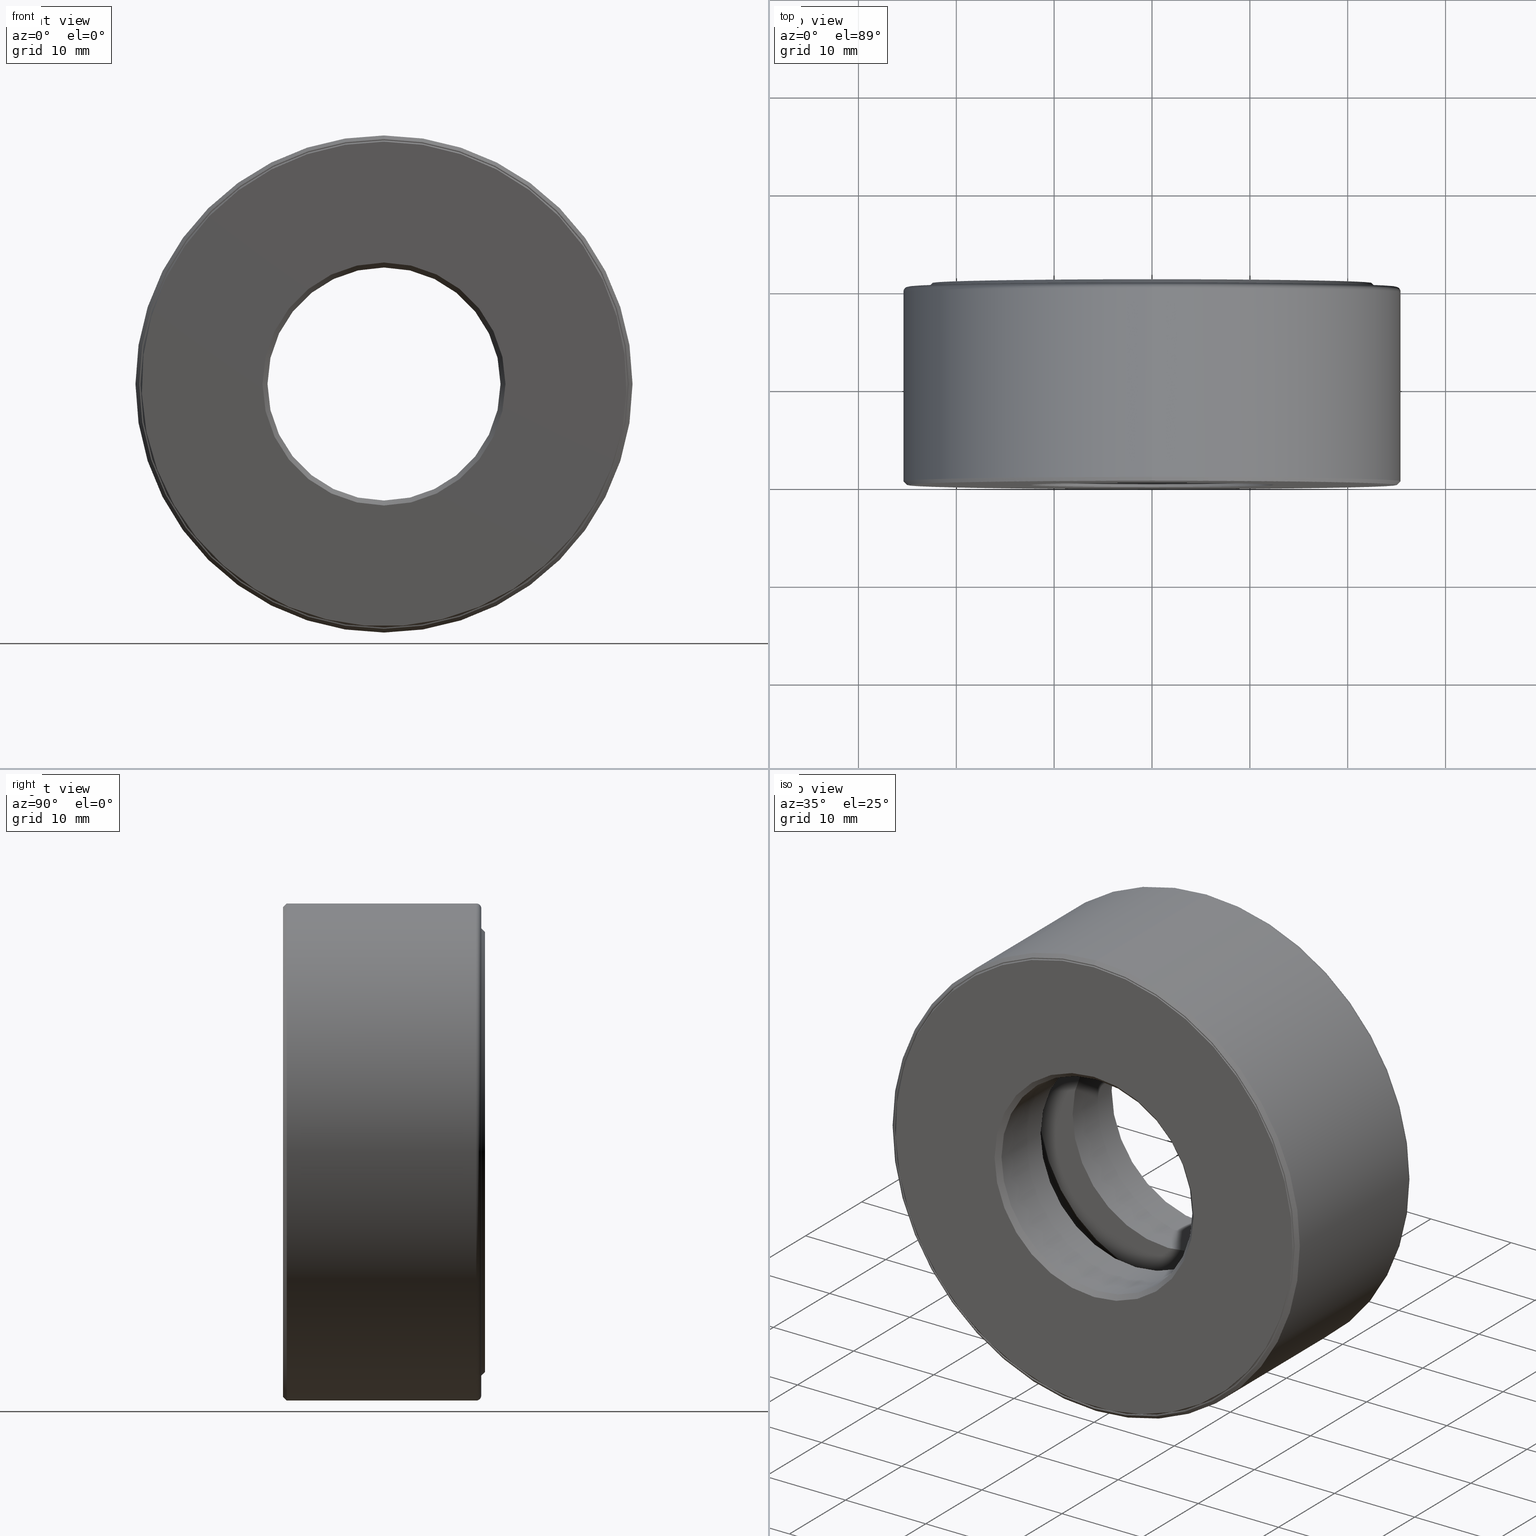
[diagram: canonical four-view strip — front | top / right | iso, engineering-drawing reading convention]
A machine part, canonical four-view strip (front | top / right | iso — engineering-drawing reading convention). The complete STEP part file that produces these views, byte-faithful:
ISO-10303-21;
HEADER;
FILE_DESCRIPTION (( 'STEP AP203' ),
    '1' );
FILE_NAME ('T-100-5.step',
    '2016-06-29T18:27:13',
    ( '' ),
    ( '' ),
    'SwSTEP 2.0',
    'SolidWorks 2016',
    '' );
FILE_SCHEMA (( 'CONFIG_CONTROL_DESIGN' ));
ENDSEC;

DATA;
#1 = DIRECTION ( 'NONE',  ( -0.0000000000000000000, 1.000000000000000000, -0.0000000000000000000 ) ) ;
#2 = FACE_BOUND ( 'NONE', #346, .T. ) ;
#3 = EDGE_LOOP ( 'NONE', ( #520 ) ) ;
#4 = CIRCLE ( 'NONE', #7, 0.9799999999999999800 ) ;
#5 = AXIS2_PLACEMENT_3D ( 'NONE', #258, #578, #65 ) ;
#6 = EDGE_CURVE ( 'NONE', #521, #521, #57, .T. ) ;
#7 = AXIS2_PLACEMENT_3D ( 'NONE', #463, #42, #561 ) ;
#8 = VERTEX_POINT ( 'NONE', #369 ) ;
#9 = SPHERICAL_SURFACE ( 'NONE', #73, 0.1874999999999999700 ) ;
#10 = ADVANCED_FACE ( 'NONE', ( #2, #331 ), #525, .F. ) ;
#11 = ADVANCED_FACE ( 'NONE', ( #195, #400 ), #96, .F. ) ;
#12 = PLANE ( 'NONE',  #468 ) ;
#13 = EDGE_LOOP ( 'NONE', ( #175 ) ) ;
#14 = LENGTH_MEASURE_WITH_UNIT ( LENGTH_MEASURE( 0.02539999999999999900 ), #507 );
#15 = CARTESIAN_POINT ( 'NONE',  ( 0.0000000000000000000, 0.0000000000000000000, 0.0000000000000000000 ) ) ;
#16 = PLANE ( 'NONE',  #5 ) ;
#17 = ORIENTED_EDGE ( 'NONE', *, *, #159, .T. ) ;
#18 = COORDINATED_UNIVERSAL_TIME_OFFSET ( 5, 0, .BEHIND. ) ;
#19 = ORIENTED_EDGE ( 'NONE', *, *, #128, .T. ) ;
#20 = CIRCLE ( 'NONE', #245, 0.9799999999999999800 ) ;
#21 = DIRECTION ( 'NONE',  ( -0.0000000000000000000, 1.000000000000000000, -0.0000000000000000000 ) ) ;
#22 = ADVANCED_FACE ( 'NONE', ( #448, #260 ), #203, .F. ) ;
#23 = EDGE_LOOP ( 'NONE', ( #423 ) ) ;
#24 = DIRECTION ( 'NONE',  ( 0.0000000000000000000, 0.0000000000000000000, 1.000000000000000000 ) ) ;
#25 = ADVANCED_FACE ( 'NONE', ( #78, #547 ), #429, .T. ) ;
#26 = EDGE_CURVE ( 'NONE', #269, #269, #246, .T. ) ;
#27 = CARTESIAN_POINT ( 'NONE',  ( 0.0000000000000000000, 0.0000000000000000000, 0.0000000000000000000 ) ) ;
#28 = DIRECTION ( 'NONE',  ( -0.0000000000000000000, 1.000000000000000000, -0.0000000000000000000 ) ) ;
#29 = CARTESIAN_POINT ( 'NONE',  ( 2.735575628983595100E-015, 0.4062500000000000000, 0.7834999999999999700 ) ) ;
#30 = CARTESIAN_POINT ( 'NONE',  ( 0.0000000000000000000, 0.8125000000000000000, 0.8849999999999996800 ) ) ;
#31 = ORIENTED_EDGE ( 'NONE', *, *, #453, .F. ) ;
#32 = VERTEX_POINT ( 'NONE', #267 ) ;
#33 = AXIS2_PLACEMENT_3D ( 'NONE', #29, #446, #413 ) ;
#34 = DIRECTION ( 'NONE',  ( -0.0000000000000000000, 1.000000000000000000, -0.0000000000000000000 ) ) ;
#35 = ORIENTED_EDGE ( 'NONE', *, *, #37, .T. ) ;
#36 = CIRCLE ( 'NONE', #100, 0.4687500000000001100 ) ;
#37 = EDGE_CURVE ( 'NONE', #32, #32, #476, .T. ) ;
#38 = CARTESIAN_POINT ( 'NONE',  ( 0.0000000000000000000, 0.7245000000000001400, 0.9729999999999999800 ) ) ;
#39 = DIRECTION ( 'NONE',  ( 1.000000000000000000, 0.0000000000000000000, 0.0000000000000000000 ) ) ;
#40 = EDGE_LOOP ( 'NONE', ( #353 ) ) ;
#41 = AXIS2_PLACEMENT_3D ( 'NONE', #71, #546, #229 ) ;
#42 = DIRECTION ( 'NONE',  ( -0.0000000000000000000, 1.000000000000000000, -0.0000000000000000000 ) ) ;
#43 = DIRECTION ( 'NONE',  ( 1.000000000000000000, 0.0000000000000000000, -1.047444401652940000E-014 ) ) ;
#44 = EDGE_LOOP ( 'NONE', ( #522 ) ) ;
#45 = ORGANIZATION ( 'UNSPECIFIED', 'UNSPECIFIED', '' ) ;
#46 = ORIENTED_EDGE ( 'NONE', *, *, #94, .T. ) ;
#47 = FACE_OUTER_BOUND ( 'NONE', #372, .T. ) ;
#48 = DIRECTION ( 'NONE',  ( -0.0000000000000000000, 1.000000000000000000, -0.0000000000000000000 ) ) ;
#49 = AXIS2_PLACEMENT_3D ( 'NONE', #418, #455, #141 ) ;
#50 = CARTESIAN_POINT ( 'NONE',  ( 0.0000000000000000000, 0.01499999999999997700, 0.0000000000000000000 ) ) ;
#51 = ADVANCED_FACE ( 'NONE', ( #598, #234 ), #12, .F. ) ;
#52 = AXIS2_PLACEMENT_3D ( 'NONE', #152, #109, #475 ) ;
#53 = ORIENTED_EDGE ( 'NONE', *, *, #238, .F. ) ;
#54 = FACE_OUTER_BOUND ( 'NONE', #591, .T. ) ;
#55 = CARTESIAN_POINT ( 'NONE',  ( 0.0000000000000000000, 0.0000000000000000000, 0.0000000000000000000 ) ) ;
#56 = EDGE_CURVE ( 'NONE', #361, #361, #351, .T. ) ;
#57 = CIRCLE ( 'NONE', #103, 0.9999999999999998900 ) ;
#58 = VERTEX_POINT ( 'NONE', #177 ) ;
#59 = CLOSED_SHELL ( 'NONE', ( #483 ) ) ;
#60 = EDGE_CURVE ( 'NONE', #196, #196, #568, .T. ) ;
#61 = FACE_OUTER_BOUND ( 'NONE', #183, .T. ) ;
#62 = PRODUCT_RELATED_PRODUCT_CATEGORY ( 'detail', '', ( #265 ) ) ;
#63 = EDGE_CURVE ( 'NONE', #424, #424, #116, .T. ) ;
#64 = ADVANCED_FACE ( 'NONE', ( #88, #370 ), #16, .F. ) ;
#65 = DIRECTION ( 'NONE',  ( 0.0000000000000000000, -0.0000000000000000000, -1.000000000000000000 ) ) ;
#66 = PERSON_AND_ORGANIZATION ( #307, #45 ) ;
#67 = ADVANCED_FACE ( 'NONE', ( #324, #217 ), #426, .F. ) ;
#68 = CIRCLE ( 'NONE', #239, 1.000000000000000000 ) ;
#69 = DIRECTION ( 'NONE',  ( -0.0000000000000000000, 1.000000000000000000, -0.0000000000000000000 ) ) ;
#70 = AXIS2_PLACEMENT_3D ( 'NONE', #275, #28, #132 ) ;
#71 = CARTESIAN_POINT ( 'NONE',  ( 0.0000000000000000000, -6.616194359655631800E-017, 0.0000000000000000000 ) ) ;
#72 = CARTESIAN_POINT ( 'NONE',  ( 0.0000000000000000000, 0.7974999999999998800, 0.9200000000000000400 ) ) ;
#73 = AXIS2_PLACEMENT_3D ( 'NONE', #312, #77, #506 ) ;
#74 = PLANE ( 'NONE',  #349 ) ;
#75 =( CONVERSION_BASED_UNIT ( 'INCH', #14 ) LENGTH_UNIT ( ) NAMED_UNIT ( #403 ) );
#76 = AXIS2_PLACEMENT_3D ( 'NONE', #465, #1, #422 ) ;
#77 = DIRECTION ( 'NONE',  ( 6.982962677686265900E-015, -0.0000000000000000000, 1.000000000000000000 ) ) ;
#78 = FACE_OUTER_BOUND ( 'NONE', #92, .T. ) ;
#79 = PERSON_AND_ORGANIZATION ( #307, #45 ) ;
#80 = AXIS2_PLACEMENT_3D ( 'NONE', #355, #398, #495 ) ;
#81 = ORIENTED_EDGE ( 'NONE', *, *, #442, .F. ) ;
#82 = MECHANICAL_CONTEXT ( 'NONE', #454, 'mechanical' ) ;
#83 = FACE_OUTER_BOUND ( 'NONE', #211, .T. ) ;
#84 = DIRECTION ( 'NONE',  ( -0.0000000000000000000, 1.000000000000000000, -0.0000000000000000000 ) ) ;
#85 = DIRECTION ( 'NONE',  ( 0.0000000000000000000, 0.0000000000000000000, 1.000000000000000000 ) ) ;
#86 = CARTESIAN_POINT ( 'NONE',  ( 0.0000000000000000000, 0.2937500000000000100, 0.4687500000000001100 ) ) ;
#87 = PERSON_AND_ORGANIZATION_ROLE ( 'classification_officer' ) ;
#88 = FACE_BOUND ( 'NONE', #535, .T. ) ;
#89 = LOCAL_TIME ( 14, 27, 13.00000000000000000, #457 ) ;
#90 = PRODUCT_DEFINITION ( 'UNKNOWN', '', #221, #559 ) ;
#91 = DIRECTION ( 'NONE',  ( 0.0000000000000000000, 0.0000000000000000000, 1.000000000000000000 ) ) ;
#92 = EDGE_LOOP ( 'NONE', ( #197 ) ) ;
#93 = FACE_OUTER_BOUND ( 'NONE', #491, .T. ) ;
#94 = EDGE_CURVE ( 'NONE', #381, #381, #36, .T. ) ;
#95 = DIRECTION ( 'NONE',  ( -0.0000000000000000000, 1.000000000000000000, -0.0000000000000000000 ) ) ;
#96 = CYLINDRICAL_SURFACE ( 'NONE', #282, 0.4687500000000000000 ) ;
#97 = FACE_OUTER_BOUND ( 'NONE', #145, .T. ) ;
#98 = EDGE_LOOP ( 'NONE', ( #549 ) ) ;
#99 = FACE_OUTER_BOUND ( 'NONE', #539, .T. ) ;
#100 = AXIS2_PLACEMENT_3D ( 'NONE', #485, #532, #531 ) ;
#101 = DIRECTION ( 'NONE',  ( 1.047444401652940000E-014, 0.0000000000000000000, 1.000000000000000000 ) ) ;
#102 = DIRECTION ( 'NONE',  ( 0.0000000000000000000, -0.0000000000000000000, -1.000000000000000000 ) ) ;
#103 = AXIS2_PLACEMENT_3D ( 'NONE', #50, #158, #427 ) ;
#104 = CALENDAR_DATE ( 2016, 29, 6 ) ;
#105 = EDGE_LOOP ( 'NONE', ( #600 ) ) ;
#106 = FACE_BOUND ( 'NONE', #298, .T. ) ;
#107 = MANIFOLD_SOLID_BREP ( 'Revolve2[1]', #420 ) ;
#108 = ADVANCED_FACE ( 'NONE', ( #106, #99 ), #163, .F. ) ;
#109 = DIRECTION ( 'NONE',  ( -0.0000000000000000000, 1.000000000000000000, -0.0000000000000000000 ) ) ;
#110 = AXIS2_PLACEMENT_3D ( 'NONE', #367, #84, #499 ) ;
#111 = EDGE_CURVE ( 'NONE', #138, #138, #438, .T. ) ;
#112 = ORIENTED_EDGE ( 'NONE', *, *, #149, .T. ) ;
#113 = LOCAL_TIME ( 14, 27, 13.00000000000000000, #18 ) ;
#114 = EDGE_LOOP ( 'NONE', ( #589 ) ) ;
#115 = CYLINDRICAL_SURFACE ( 'NONE', #147, 0.4687500000000001100 ) ;
#116 = CIRCLE ( 'NONE', #80, 0.4687500000000001100 ) ;
#117 = APPROVAL_PERSON_ORGANIZATION ( #66, #137, #604 ) ;
#118 = EDGE_LOOP ( 'NONE', ( #262 ) ) ;
#119 = CIRCLE ( 'NONE', #49, 0.4887500000000000700 ) ;
#120 = ADVANCED_FACE ( 'NONE', ( #584, #460 ), #489, .F. ) ;
#121 = AXIS2_PLACEMENT_3D ( 'NONE', #509, #131, #358 ) ;
#122 = DIRECTION ( 'NONE',  ( -0.0000000000000000000, 1.000000000000000000, -0.0000000000000000000 ) ) ;
#123 = CARTESIAN_POINT ( 'NONE',  ( 0.0000000000000000000, 0.0000000000000000000, 0.0000000000000000000 ) ) ;
#124 = CARTESIAN_POINT ( 'NONE',  ( 0.0000000000000000000, 0.7774999999999998600, 0.0000000000000000000 ) ) ;
#125 = CARTESIAN_POINT ( 'NONE',  ( 0.0000000000000000000, 0.7774999999999998600, 0.9799999999999999800 ) ) ;
#126 = EDGE_LOOP ( 'NONE', ( #225 ) ) ;
#127 = DIRECTION ( 'NONE',  ( 0.0000000000000000000, -0.0000000000000000000, -1.000000000000000000 ) ) ;
#128 = EDGE_CURVE ( 'NONE', #449, #449, #306, .T. ) ;
#129 = ADVANCED_FACE ( 'NONE', ( #61, #140 ), #215, .F. ) ;
#130 = CIRCLE ( 'NONE', #503, 0.9729999999999999800 ) ;
#131 = DIRECTION ( 'NONE',  ( 0.0000000000000000000, -1.000000000000000000, 0.0000000000000000000 ) ) ;
#132 = DIRECTION ( 'NONE',  ( 0.0000000000000000000, 0.0000000000000000000, 1.000000000000000000 ) ) ;
#133 = APPLICATION_PROTOCOL_DEFINITION ( 'international standard', 'config_control_design', 1994, #410 ) ;
#134 = AXIS2_PLACEMENT_3D ( 'NONE', #543, #405, #356 ) ;
#135 = PLANE ( 'NONE',  #310 ) ;
#136 = DIRECTION ( 'NONE',  ( -0.0000000000000000000, 1.000000000000000000, -0.0000000000000000000 ) ) ;
#137 = APPROVAL ( #385, 'UNSPECIFIED' ) ;
#138 = VERTEX_POINT ( 'NONE', #187 ) ;
#139 = EDGE_LOOP ( 'NONE', ( #404 ) ) ;
#140 = FACE_OUTER_BOUND ( 'NONE', #390, .T. ) ;
#141 = DIRECTION ( 'NONE',  ( 0.0000000000000000000, 0.0000000000000000000, 1.000000000000000000 ) ) ;
#142 = CARTESIAN_POINT ( 'NONE',  ( -8.194164824205915600E-033, -3.148027961449053600E-017, 0.0000000000000000000 ) ) ;
#143 = DIRECTION ( 'NONE',  ( -0.0000000000000000000, 1.000000000000000000, 0.0000000000000000000 ) ) ;
#144 = APPROVAL_ROLE ( '' ) ;
#145 = EDGE_LOOP ( 'NONE', ( #19 ) ) ;
#146 = CYLINDRICAL_SURFACE ( 'NONE', #350, 0.9729999999999999800 ) ;
#147 = AXIS2_PLACEMENT_3D ( 'NONE', #181, #545, #411 ) ;
#148 = CARTESIAN_POINT ( 'NONE',  ( -8.206726886950784100E-015, 0.4062500000000000000, -0.7834999999999999700 ) ) ;
#149 = EDGE_CURVE ( 'NONE', #167, #167, #494, .T. ) ;
#150 = ORIENTED_EDGE ( 'NONE', *, *, #164, .T. ) ;
#151 = FACE_BOUND ( 'NONE', #327, .T. ) ;
#152 = CARTESIAN_POINT ( 'NONE',  ( 0.0000000000000000000, 0.5187500000000000400, 0.0000000000000000000 ) ) ;
#153 = UNCERTAINTY_MEASURE_WITH_UNIT (LENGTH_MEASURE( 1.000000000000000100E-005 ), #75, 'distance_accuracy_value', 'NONE');
#154 = ADVANCED_FACE ( 'NONE', ( #334, #480 ), #354, .F. ) ;
#155 = APPROVAL_DATE_TIME ( #391, #137 ) ;
#156 = DIRECTION ( 'NONE',  ( -0.0000000000000000000, 1.000000000000000000, 0.0000000000000000000 ) ) ;
#157 = AXIS2_PLACEMENT_3D ( 'NONE', #123, #314, #365 ) ;
#158 = DIRECTION ( 'NONE',  ( -0.0000000000000000000, 1.000000000000000000, -0.0000000000000000000 ) ) ;
#159 = EDGE_CURVE ( 'NONE', #519, #519, #592, .T. ) ;
#160 = ADVANCED_FACE ( 'NONE', ( #402, #237 ), #497, .F. ) ;
#161 = ORIENTED_EDGE ( 'NONE', *, *, #6, .T. ) ;
#162 = AXIS2_PLACEMENT_3D ( 'NONE', #554, #508, #376 ) ;
#163 = PLANE ( 'NONE',  #364 ) ;
#164 = EDGE_CURVE ( 'NONE', #534, #534, #470, .T. ) ;
#165 = CARTESIAN_POINT ( 'NONE',  ( -4.314410473864960100E-016, 0.2937499999999999000, 0.0000000000000000000 ) ) ;
#166 = ORIENTED_EDGE ( 'NONE', *, *, #128, .F. ) ;
#167 = VERTEX_POINT ( 'NONE', #552 ) ;
#168 = EDGE_LOOP ( 'NONE', ( #46 ) ) ;
#169 = FACE_OUTER_BOUND ( 'NONE', #205, .T. ) ;
#170 = ADVANCED_FACE ( 'NONE', ( #444, #186 ), #206, .T. ) ;
#171 = DIRECTION ( 'NONE',  ( 0.0000000000000000000, 0.0000000000000000000, -1.000000000000000000 ) ) ;
#172 = DIRECTION ( 'NONE',  ( -0.0000000000000000000, 1.000000000000000000, -0.0000000000000000000 ) ) ;
#173 = AXIS2_PLACEMENT_3D ( 'NONE', #450, #172, #587 ) ;
#174 = ADVANCED_FACE ( 'NONE', ( #363, #329 ), #414, .T. ) ;
#175 = ORIENTED_EDGE ( 'NONE', *, *, #368, .F. ) ;
#176 = VERTEX_POINT ( 'NONE', #223 ) ;
#177 = CARTESIAN_POINT ( 'NONE',  ( 0.0000000000000000000, 0.2937500000000000100, 0.6334999999999999500 ) ) ;
#178 = CARTESIAN_POINT ( 'NONE',  ( 0.0000000000000000000, 0.5187499999999999300, 0.6334999999999999500 ) ) ;
#179 = ADVANCED_FACE ( 'NONE', ( #373, #169 ), #74, .T. ) ;
#180 = AXIS2_PLACEMENT_3D ( 'NONE', #515, #283, #378 ) ;
#181 = CARTESIAN_POINT ( 'NONE',  ( 0.0000000000000000000, 0.0000000000000000000, 0.0000000000000000000 ) ) ;
#182 = APPROVAL_STATUS ( 'not_yet_approved' ) ;
#183 = EDGE_LOOP ( 'NONE', ( #53 ) ) ;
#184 = DIRECTION ( 'NONE',  ( -0.0000000000000000000, 1.000000000000000000, -0.0000000000000000000 ) ) ;
#185 = ORIENTED_EDGE ( 'NONE', *, *, #26, .T. ) ;
#186 = FACE_BOUND ( 'NONE', #574, .T. ) ;
#187 = CARTESIAN_POINT ( 'NONE',  ( 0.0000000000000000000, 0.02000000000000005900, 0.4687500000000000000 ) ) ;
#188 = DATE_TIME_ROLE ( 'classification_date' ) ;
#189 = AXIS2_PLACEMENT_3D ( 'NONE', #357, #122, #317 ) ;
#190 = CC_DESIGN_APPROVAL ( #137, ( #399 ) ) ;
#191 = ORIENTED_EDGE ( 'NONE', *, *, #164, .F. ) ;
#192 = DATE_TIME_ROLE ( 'creation_date' ) ;
#193 = APPROVAL_PERSON_ORGANIZATION ( #548, #255, #144 ) ;
#194 = DIRECTION ( 'NONE',  ( 0.0000000000000000000, 0.0000000000000000000, 1.000000000000000000 ) ) ;
#195 = FACE_OUTER_BOUND ( 'NONE', #435, .T. ) ;
#196 = VERTEX_POINT ( 'NONE', #271 ) ;
#197 = ORIENTED_EDGE ( 'NONE', *, *, #473, .T. ) ;
#198 = CIRCLE ( 'NONE', #70, 0.6334999999999999500 ) ;
#199 = CARTESIAN_POINT ( 'NONE',  ( 0.0000000000000000000, 0.8125000000000000000, 0.0000000000000000000 ) ) ;
#200 = MANIFOLD_SOLID_BREP ( 'Revolve3', #528 ) ;
#201 = AXIS2_PLACEMENT_3D ( 'NONE', #384, #95, #194 ) ;
#202 = CARTESIAN_POINT ( 'NONE',  ( 0.0000000000000000000, 0.7974999999999998800, 0.0000000000000000000 ) ) ;
#203 = CONICAL_SURFACE ( 'NONE', #570, 0.4687500000000001100, 0.7853981633974482800 ) ;
#204 = PERSON_AND_ORGANIZATION ( #307, #45 ) ;
#205 = EDGE_LOOP ( 'NONE', ( #214 ) ) ;
#206 = CONICAL_SURFACE ( 'NONE', #41, 0.9849999999999999900, 0.7853981633974415100 ) ;
#207 = ADVANCED_FACE ( 'NONE', ( #257, #228 ), #340, .T. ) ;
#208 = DIRECTION ( 'NONE',  ( 0.0000000000000000000, 0.0000000000000000000, 1.000000000000000000 ) ) ;
#209 = DIRECTION ( 'NONE',  ( 0.0000000000000000000, 0.0000000000000000000, 1.000000000000000000 ) ) ;
#210 = DIRECTION ( 'NONE',  ( 0.0000000000000000000, -0.0000000000000000000, -1.000000000000000000 ) ) ;
#211 = EDGE_LOOP ( 'NONE', ( #383 ) ) ;
#212 = VERTEX_POINT ( 'NONE', #447 ) ;
#213 = AXIS2_PLACEMENT_3D ( 'NONE', #148, #43, #101 ) ;
#214 = ORIENTED_EDGE ( 'NONE', *, *, #159, .F. ) ;
#215 = TOROIDAL_SURFACE ( 'NONE', #295, 0.7834999999999999700, 0.1875000000000000600 ) ;
#216 = DIRECTION ( 'NONE',  ( 0.0000000000000000000, -1.000000000000000000, 0.0000000000000000000 ) ) ;
#217 = FACE_BOUND ( 'NONE', #293, .T. ) ;
#218 = PERSON_AND_ORGANIZATION ( #307, #45 ) ;
#219 = FACE_OUTER_BOUND ( 'NONE', #40, .T. ) ;
#220 = CARTESIAN_POINT ( 'NONE',  ( 0.0000000000000000000, 0.005000000000000119800, 0.0000000000000000000 ) ) ;
#221 = PRODUCT_DEFINITION_FORMATION_WITH_SPECIFIED_SOURCE ( 'ANY', '', #265, .NOT_KNOWN. ) ;
#222 = DIRECTION ( 'NONE',  ( 0.0000000000000000000, 0.0000000000000000000, 1.000000000000000000 ) ) ;
#223 = CARTESIAN_POINT ( 'NONE',  ( 0.0000000000000000000, 0.5187500000000000400, 0.9729999999999999800 ) ) ;
#224 = DIRECTION ( 'NONE',  ( 0.0000000000000000000, 0.0000000000000000000, 1.000000000000000000 ) ) ;
#225 = ORIENTED_EDGE ( 'NONE', *, *, #60, .F. ) ;
#226 = FACE_OUTER_BOUND ( 'NONE', #13, .T. ) ;
#227 = EDGE_LOOP ( 'NONE', ( #379 ) ) ;
#228 = FACE_OUTER_BOUND ( 'NONE', #486, .T. ) ;
#229 = DIRECTION ( 'NONE',  ( 0.0000000000000000000, 0.0000000000000000000, 1.000000000000000000 ) ) ;
#230 = APPROVAL_ROLE ( '' ) ;
#231 = AXIS2_PLACEMENT_3D ( 'NONE', #15, #434, #302 ) ;
#232 = DIRECTION ( 'NONE',  ( 0.0000000000000000000, 0.0000000000000000000, 1.000000000000000000 ) ) ;
#233 = DIRECTION ( 'NONE',  ( 0.0000000000000000000, 0.0000000000000000000, 1.000000000000000000 ) ) ;
#234 = FACE_BOUND ( 'NONE', #114, .T. ) ;
#235 = DATE_AND_TIME ( #104, #338 ) ;
#236 = EDGE_LOOP ( 'NONE', ( #31 ) ) ;
#237 = FACE_BOUND ( 'NONE', #387, .T. ) ;
#238 = EDGE_CURVE ( 'NONE', #58, #58, #198, .T. ) ;
#239 = AXIS2_PLACEMENT_3D ( 'NONE', #606, #597, #417 ) ;
#240 = ORIENTED_EDGE ( 'NONE', *, *, #276, .F. ) ;
#241 = VERTEX_POINT ( 'NONE', #30 ) ;
#242 = EDGE_LOOP ( 'NONE', ( #240 ) ) ;
#243 = CARTESIAN_POINT ( 'NONE',  ( 0.0000000000000000000, 0.8125000000000000000, 0.0000000000000000000 ) ) ;
#244 = CIRCLE ( 'NONE', #76, 0.9335000000000000000 ) ;
#245 = AXIS2_PLACEMENT_3D ( 'NONE', #220, #320, #595 ) ;
#246 = CIRCLE ( 'NONE', #560, 0.9849999999999999900 ) ;
#247 = ADVANCED_FACE ( 'NONE', ( #263, #83 ), #115, .F. ) ;
#248 = CALENDAR_DATE ( 2016, 29, 6 ) ;
#249 = CARTESIAN_POINT ( 'NONE',  ( -1.574715117770886900E-031, -6.507487115823648300E-017, 0.0000000000000000000 ) ) ;
#250 = ORIENTED_EDGE ( 'NONE', *, *, #56, .F. ) ;
#251 = CIRCLE ( 'NONE', #366, 0.8849999999999996800 ) ;
#252 = CARTESIAN_POINT ( 'NONE',  ( 0.0000000000000000000, 0.7924999999999999800, 0.0000000000000000000 ) ) ;
#253 = ADVANCED_FACE ( 'NONE', ( ), #9, .T. ) ;
#254 = CC_DESIGN_DATE_AND_TIME_ASSIGNMENT ( #436, #192, ( #90 ) ) ;
#255 = APPROVAL ( #328, 'UNSPECIFIED' ) ;
#256 = ORIENTED_EDGE ( 'NONE', *, *, #238, .T. ) ;
#257 = FACE_OUTER_BOUND ( 'NONE', #236, .T. ) ;
#258 = CARTESIAN_POINT ( 'NONE',  ( 0.0000000000000000000, 0.7974999999999998800, 0.0000000000000000000 ) ) ;
#259 = DIRECTION ( 'NONE',  ( -0.0000000000000000000, 1.000000000000000000, -0.0000000000000000000 ) ) ;
#260 = FACE_BOUND ( 'NONE', #98, .T. ) ;
#261 = VERTEX_POINT ( 'NONE', #498 ) ;
#262 = ORIENTED_EDGE ( 'NONE', *, *, #538, .T. ) ;
#263 = FACE_OUTER_BOUND ( 'NONE', #466, .T. ) ;
#264 = DIRECTION ( 'NONE',  ( 0.0000000000000000000, 0.0000000000000000000, 1.000000000000000000 ) ) ;
#265 = PRODUCT ( 'T-100-5', 'T-100-5', '', ( #82 ) ) ;
#266 = EDGE_CURVE ( 'NONE', #540, #540, #68, .T. ) ;
#267 = CARTESIAN_POINT ( 'NONE',  ( 0.0000000000000000000, 0.5187500000000000400, 0.4687500000000001100 ) ) ;
#268 = ORIENTED_EDGE ( 'NONE', *, *, #111, .F. ) ;
#269 = VERTEX_POINT ( 'NONE', #277 ) ;
#270 = DIRECTION ( 'NONE',  ( -0.0000000000000000000, 1.000000000000000000, 0.0000000000000000000 ) ) ;
#271 = CARTESIAN_POINT ( 'NONE',  ( 0.0000000000000000000, -6.398779871991658700E-017, 0.9799999999999997600 ) ) ;
#272 = AXIS2_PLACEMENT_3D ( 'NONE', #416, #184, #462 ) ;
#273 = APPLICATION_PROTOCOL_DEFINITION ( 'international standard', 'config_control_design', 1994, #454 ) ;
#274 =( GEOMETRIC_REPRESENTATION_CONTEXT ( 3 ) GLOBAL_UNCERTAINTY_ASSIGNED_CONTEXT ( ( #153 ) ) GLOBAL_UNIT_ASSIGNED_CONTEXT ( ( #75, #309, #502 ) ) REPRESENTATION_CONTEXT ( 'NONE', 'WORKASPACE' ) );
#275 = CARTESIAN_POINT ( 'NONE',  ( 0.0000000000000000000, 0.2937500000000000100, 0.0000000000000000000 ) ) ;
#276 = EDGE_CURVE ( 'NONE', #511, #511, #119, .T. ) ;
#277 = CARTESIAN_POINT ( 'NONE',  ( 0.0000000000000000000, -6.616194359655631800E-017, 0.9849999999999999900 ) ) ;
#278 = ORIENTED_EDGE ( 'NONE', *, *, #149, .F. ) ;
#279 = PERSON_AND_ORGANIZATION_ROLE ( 'design_owner' ) ;
#280 = CIRCLE ( 'NONE', #537, 0.9335000000000000000 ) ;
#281 = AXIS2_PLACEMENT_3D ( 'NONE', #124, #270, #308 ) ;
#282 = AXIS2_PLACEMENT_3D ( 'NONE', #55, #395, #393 ) ;
#283 = DIRECTION ( 'NONE',  ( 0.0000000000000000000, -1.000000000000000000, 0.0000000000000000000 ) ) ;
#284 = EDGE_LOOP ( 'NONE', ( #430 ) ) ;
#285 = CC_DESIGN_DATE_AND_TIME_ASSIGNMENT ( #326, #188, ( #399 ) ) ;
#286 = DIRECTION ( 'NONE',  ( 0.0000000000000000000, 0.0000000000000000000, 1.000000000000000000 ) ) ;
#287 = EDGE_CURVE ( 'NONE', #294, #294, #602, .T. ) ;
#288 = MANIFOLD_SOLID_BREP ( 'BALLS[3]', #59 ) ;
#289 = PRODUCT_DEFINITION_SHAPE ( 'NONE', 'NONE',  #90 ) ;
#290 = CLOSED_SHELL ( 'NONE', ( #567, #474, #179, #247, #22, #25, #394, #573 ) ) ;
#291 = VERTEX_POINT ( 'NONE', #38 ) ;
#292 = CIRCLE ( 'NONE', #415, 0.9749999999999999800 ) ;
#293 = EDGE_LOOP ( 'NONE', ( #469 ) ) ;
#294 = VERTEX_POINT ( 'NONE', #319 ) ;
#295 = AXIS2_PLACEMENT_3D ( 'NONE', #582, #21, #222 ) ;
#296 = CARTESIAN_POINT ( 'NONE',  ( 0.0000000000000000000, 0.02000000000000005900, 0.0000000000000000000 ) ) ;
#297 = CC_DESIGN_PERSON_AND_ORGANIZATION_ASSIGNMENT ( #332, #279, ( #265 ) ) ;
#298 = EDGE_LOOP ( 'NONE', ( #81 ) ) ;
#299 = COORDINATED_UNIVERSAL_TIME_OFFSET ( 5, 0, .BEHIND. ) ;
#300 = CLOSED_SHELL ( 'NONE', ( #541 ) ) ;
#301 = CYLINDRICAL_SURFACE ( 'NONE', #382, 1.000000000000000000 ) ;
#302 = DIRECTION ( 'NONE',  ( 0.0000000000000000000, 0.0000000000000000000, 1.000000000000000000 ) ) ;
#303 = MANIFOLD_SOLID_BREP ( 'BALLS[1]', #300 ) ;
#304 = DIRECTION ( 'NONE',  ( -0.0000000000000000000, 1.000000000000000000, -0.0000000000000000000 ) ) ;
#305 = ORIENTED_EDGE ( 'NONE', *, *, #538, .F. ) ;
#306 = CIRCLE ( 'NONE', #189, 0.9799999999999999800 ) ;
#307 = PERSON ( 'UNSPECIFIED', 'UNSPECIFIED', 'UNSPECIFIED', ('UNSPECIFIED'), ('UNSPECIFIED'), ('UNSPECIFIED') ) ;
#308 = DIRECTION ( 'NONE',  ( 0.0000000000000000000, 0.0000000000000000000, 1.000000000000000000 ) ) ;
#309 =( NAMED_UNIT ( * ) PLANE_ANGLE_UNIT ( ) SI_UNIT ( $, .RADIAN. ) );
#310 = AXIS2_PLACEMENT_3D ( 'NONE', #142, #143, #461 ) ;
#311 = CARTESIAN_POINT ( 'NONE',  ( 0.0000000000000000000, 0.8125000000000000000, 0.4887500000000001300 ) ) ;
#312 = CARTESIAN_POINT ( 'NONE',  ( 0.7834999999999999700, 0.4062500000000000000, -5.471151257967190200E-015 ) ) ;
#313 = EDGE_CURVE ( 'NONE', #8, #8, #292, .T. ) ;
#314 = DIRECTION ( 'NONE',  ( 0.0000000000000000000, 0.0000000000000000000, 1.000000000000000000 ) ) ;
#315 = ORIENTED_EDGE ( 'NONE', *, *, #56, .T. ) ;
#316 = PERSON_AND_ORGANIZATION ( #307, #45 ) ;
#317 = DIRECTION ( 'NONE',  ( 0.0000000000000000000, 0.0000000000000000000, 1.000000000000000000 ) ) ;
#318 = FACE_OUTER_BOUND ( 'NONE', #501, .T. ) ;
#319 = CARTESIAN_POINT ( 'NONE',  ( 0.0000000000000000000, 0.7774999999999998600, 0.9200000000000000400 ) ) ;
#320 = DIRECTION ( 'NONE',  ( -0.0000000000000000000, 1.000000000000000000, -0.0000000000000000000 ) ) ;
#321 = EDGE_CURVE ( 'NONE', #492, #492, #280, .T. ) ;
#322 = DIRECTION ( 'NONE',  ( -0.0000000000000000000, 1.000000000000000000, -0.0000000000000000000 ) ) ;
#323 = CARTESIAN_POINT ( 'NONE',  ( -0.7834999999999999700, 0.4062500000000000000, 0.0000000000000000000 ) ) ;
#324 = FACE_OUTER_BOUND ( 'NONE', #242, .T. ) ;
#325 = ADVANCED_BREP_SHAPE_REPRESENTATION ( 'T-100-5', ( #107, #496, #200, #303, #428, #288, #157 ), #274 ) ;
#326 = DATE_AND_TIME ( #443, #89 ) ;
#327 = EDGE_LOOP ( 'NONE', ( #565 ) ) ;
#328 = APPROVAL_STATUS ( 'not_yet_approved' ) ;
#329 = FACE_BOUND ( 'NONE', #396, .T. ) ;
#330 = CARTESIAN_POINT ( 'NONE',  ( 0.0000000000000000000, 0.0000000000000000000, 0.0000000000000000000 ) ) ;
#331 = FACE_OUTER_BOUND ( 'NONE', #339, .T. ) ;
#332 = PERSON_AND_ORGANIZATION ( #307, #45 ) ;
#333 = ORIENTED_EDGE ( 'NONE', *, *, #266, .T. ) ;
#334 = FACE_OUTER_BOUND ( 'NONE', #44, .T. ) ;
#335 = CC_DESIGN_APPROVAL ( #433, ( #90 ) ) ;
#336 = CARTESIAN_POINT ( 'NONE',  ( 0.0000000000000000000, -6.398779871991658700E-017, 0.0000000000000000000 ) ) ;
#337 = ADVANCED_FACE ( 'NONE', ( #219, #93 ), #301, .T. ) ;
#338 = LOCAL_TIME ( 14, 27, 13.00000000000000000, #529 ) ;
#339 = EDGE_LOOP ( 'NONE', ( #256 ) ) ;
#340 = TOROIDAL_SURFACE ( 'NONE', #386, 0.9799999999999999800, 0.02000000000000005900 ) ;
#341 = ADVANCED_FACE ( 'NONE', ( ), #523, .T. ) ;
#342 = CARTESIAN_POINT ( 'NONE',  ( 0.0000000000000000000, 0.2937500000000000100, 0.0000000000000000000 ) ) ;
#343 = CC_DESIGN_PERSON_AND_ORGANIZATION_ASSIGNMENT ( #218, #380, ( #221 ) ) ;
#344 = ORIENTED_EDGE ( 'NONE', *, *, #276, .T. ) ;
#345 = LOCAL_TIME ( 14, 27, 13.00000000000000000, #299 ) ;
#346 = EDGE_LOOP ( 'NONE', ( #518 ) ) ;
#347 = TOROIDAL_SURFACE ( 'NONE', #201, 0.7834999999999999700, 0.1874999999999999700 ) ;
#348 = DIRECTION ( 'NONE',  ( 0.0000000000000000000, -1.000000000000000000, 0.0000000000000000000 ) ) ;
#349 = AXIS2_PLACEMENT_3D ( 'NONE', #359, #407, #127 ) ;
#350 = AXIS2_PLACEMENT_3D ( 'NONE', #408, #136, #85 ) ;
#351 = CIRCLE ( 'NONE', #586, 0.9200000000000000400 ) ;
#352 = COORDINATED_UNIVERSAL_TIME_OFFSET ( 5, 0, .BEHIND. ) ;
#353 = ORIENTED_EDGE ( 'NONE', *, *, #266, .F. ) ;
#354 = CYLINDRICAL_SURFACE ( 'NONE', #134, 0.9200000000000000400 ) ;
#355 = CARTESIAN_POINT ( 'NONE',  ( 0.0000000000000000000, 0.7924999999999999800, 0.0000000000000000000 ) ) ;
#356 = DIRECTION ( 'NONE',  ( 0.0000000000000000000, 0.0000000000000000000, 1.000000000000000000 ) ) ;
#357 = CARTESIAN_POINT ( 'NONE',  ( 0.0000000000000000000, 0.7774999999999998600, 0.0000000000000000000 ) ) ;
#358 = DIRECTION ( 'NONE',  ( 0.0000000000000000000, -0.0000000000000000000, -1.000000000000000000 ) ) ;
#359 = CARTESIAN_POINT ( 'NONE',  ( -2.150449388032380200E-016, 0.5187500000000000400, 0.0000000000000000000 ) ) ;
#360 = ORIENTED_EDGE ( 'NONE', *, *, #287, .T. ) ;
#361 = VERTEX_POINT ( 'NONE', #72 ) ;
#362 = CARTESIAN_POINT ( 'NONE',  ( 0.0000000000000000000, 0.0000000000000000000, 0.4887500000000000700 ) ) ;
#363 = FACE_OUTER_BOUND ( 'NONE', #437, .T. ) ;
#364 = AXIS2_PLACEMENT_3D ( 'NONE', #165, #348, #210 ) ;
#365 = DIRECTION ( 'NONE',  ( 1.000000000000000000, 0.0000000000000000000, 0.0000000000000000000 ) ) ;
#366 = AXIS2_PLACEMENT_3D ( 'NONE', #243, #563, #286 ) ;
#367 = CARTESIAN_POINT ( 'NONE',  ( 0.0000000000000000000, -6.296055922898104700E-017, 0.0000000000000000000 ) ) ;
#368 = EDGE_CURVE ( 'NONE', #291, #291, #551, .T. ) ;
#369 = CARTESIAN_POINT ( 'NONE',  ( 0.0000000000000000000, -6.296055922898104700E-017, 0.9749999999999999800 ) ) ;
#370 = FACE_OUTER_BOUND ( 'NONE', #284, .T. ) ;
#371 = DATE_AND_TIME ( #590, #113 ) ;
#372 = EDGE_LOOP ( 'NONE', ( #17 ) ) ;
#373 = FACE_BOUND ( 'NONE', #564, .T. ) ;
#374 = AXIS2_PLACEMENT_3D ( 'NONE', #296, #216, #171 ) ;
#375 = CARTESIAN_POINT ( 'NONE',  ( 0.0000000000000000000, 0.5187500000000000400, 0.0000000000000000000 ) ) ;
#376 = DIRECTION ( 'NONE',  ( 0.0000000000000000000, 0.0000000000000000000, 1.000000000000000000 ) ) ;
#377 = AXIS2_PLACEMENT_3D ( 'NONE', #342, #524, #102 ) ;
#378 = DIRECTION ( 'NONE',  ( 0.0000000000000000000, 0.0000000000000000000, -1.000000000000000000 ) ) ;
#379 = ORIENTED_EDGE ( 'NONE', *, *, #313, .F. ) ;
#380 = PERSON_AND_ORGANIZATION_ROLE ( 'design_supplier' ) ;
#381 = VERTEX_POINT ( 'NONE', #86 ) ;
#382 = AXIS2_PLACEMENT_3D ( 'NONE', #330, #517, #456 ) ;
#383 = ORIENTED_EDGE ( 'NONE', *, *, #37, .F. ) ;
#384 = CARTESIAN_POINT ( 'NONE',  ( 0.0000000000000000000, 0.4062500000000000000, 0.0000000000000000000 ) ) ;
#385 = APPROVAL_STATUS ( 'not_yet_approved' ) ;
#386 = AXIS2_PLACEMENT_3D ( 'NONE', #504, #69, #224 ) ;
#387 = EDGE_LOOP ( 'NONE', ( #360 ) ) ;
#388 = APPROVAL_PERSON_ORGANIZATION ( #316, #433, #230 ) ;
#389 = DIRECTION ( 'NONE',  ( 0.0000000000000000000, 0.0000000000000000000, 1.000000000000000000 ) ) ;
#390 = EDGE_LOOP ( 'NONE', ( #458 ) ) ;
#391 = DATE_AND_TIME ( #477, #556 ) ;
#392 = CC_DESIGN_PERSON_AND_ORGANIZATION_ASSIGNMENT ( #204, #459, ( #221 ) ) ;
#393 = DIRECTION ( 'NONE',  ( 0.0000000000000000000, 0.0000000000000000000, 1.000000000000000000 ) ) ;
#394 = ADVANCED_FACE ( 'NONE', ( #577, #558 ), #572, .T. ) ;
#395 = DIRECTION ( 'NONE',  ( -0.0000000000000000000, 1.000000000000000000, -0.0000000000000000000 ) ) ;
#396 = EDGE_LOOP ( 'NONE', ( #425 ) ) ;
#397 = DIRECTION ( 'NONE',  ( -0.0000000000000000000, 1.000000000000000000, -0.0000000000000000000 ) ) ;
#398 = DIRECTION ( 'NONE',  ( -0.0000000000000000000, 1.000000000000000000, -0.0000000000000000000 ) ) ;
#399 = SECURITY_CLASSIFICATION ( '', '', #601 ) ;
#400 = FACE_OUTER_BOUND ( 'NONE', #168, .T. ) ;
#401 = ORIENTED_EDGE ( 'NONE', *, *, #439, .F. ) ;
#402 = FACE_OUTER_BOUND ( 'NONE', #557, .T. ) ;
#403 = DIMENSIONAL_EXPONENTS ( 1.000000000000000000, 0.0000000000000000000, 0.0000000000000000000, 0.0000000000000000000, 0.0000000000000000000, 0.0000000000000000000, 0.0000000000000000000 ) ;
#404 = ORIENTED_EDGE ( 'NONE', *, *, #473, .F. ) ;
#405 = DIRECTION ( 'NONE',  ( -0.0000000000000000000, 1.000000000000000000, -0.0000000000000000000 ) ) ;
#406 = AXIS2_PLACEMENT_3D ( 'NONE', #27, #322, #24 ) ;
#407 = DIRECTION ( 'NONE',  ( 0.0000000000000000000, -1.000000000000000000, 0.0000000000000000000 ) ) ;
#408 = CARTESIAN_POINT ( 'NONE',  ( 0.0000000000000000000, 0.0000000000000000000, 0.0000000000000000000 ) ) ;
#409 = CARTESIAN_POINT ( 'NONE',  ( 0.0000000000000000000, 0.2937499999999999000, 0.0000000000000000000 ) ) ;
#410 = APPLICATION_CONTEXT ( 'configuration controlled 3d designs of mechanical parts and assemblies' ) ;
#411 = DIRECTION ( 'NONE',  ( 0.0000000000000000000, 0.0000000000000000000, 1.000000000000000000 ) ) ;
#412 = EDGE_LOOP ( 'NONE', ( #191 ) ) ;
#413 = DIRECTION ( 'NONE',  ( -3.491481338843133000E-015, 0.0000000000000000000, -1.000000000000000000 ) ) ;
#414 = CONICAL_SURFACE ( 'NONE', #110, 0.9749999999999999800, 0.7853981633974246300 ) ;
#415 = AXIS2_PLACEMENT_3D ( 'NONE', #605, #512, #233 ) ;
#416 = CARTESIAN_POINT ( 'NONE',  ( 0.0000000000000000000, 0.7774999999999998600, 0.0000000000000000000 ) ) ;
#417 = DIRECTION ( 'NONE',  ( 0.0000000000000000000, 0.0000000000000000000, 1.000000000000000000 ) ) ;
#418 = CARTESIAN_POINT ( 'NONE',  ( 0.0000000000000000000, 0.0000000000000000000, 0.0000000000000000000 ) ) ;
#419 = CARTESIAN_POINT ( 'NONE',  ( 0.0000000000000000000, 0.5187499999999999300, 0.0000000000000000000 ) ) ;
#420 = CLOSED_SHELL ( 'NONE', ( #129, #108, #579, #160, #154, #64, #207, #337, #170, #51, #120, #174, #440, #67, #11, #10 ) ) ;
#421 = SPHERICAL_SURFACE ( 'NONE', #33, 0.1874999999999999700 ) ;
#422 = DIRECTION ( 'NONE',  ( 0.0000000000000000000, 0.0000000000000000000, 1.000000000000000000 ) ) ;
#423 = ORIENTED_EDGE ( 'NONE', *, *, #26, .F. ) ;
#424 = VERTEX_POINT ( 'NONE', #588 ) ;
#425 = ORIENTED_EDGE ( 'NONE', *, *, #313, .T. ) ;
#426 = CONICAL_SURFACE ( 'NONE', #374, 0.4687500000000000000, 0.7853981633974482800 ) ;
#427 = DIRECTION ( 'NONE',  ( 0.0000000000000000000, 0.0000000000000000000, 1.000000000000000000 ) ) ;
#428 = MANIFOLD_SOLID_BREP ( 'BALLS[2]', #533 ) ;
#429 = PLANE ( 'NONE',  #530 ) ;
#430 = ORIENTED_EDGE ( 'NONE', *, *, #453, .T. ) ;
#431 = FACE_BOUND ( 'NONE', #510, .T. ) ;
#432 = DIRECTION ( 'NONE',  ( -0.0000000000000000000, 1.000000000000000000, -0.0000000000000000000 ) ) ;
#433 = APPROVAL ( #182, 'UNSPECIFIED' ) ;
#434 = DIRECTION ( 'NONE',  ( -0.0000000000000000000, 1.000000000000000000, -0.0000000000000000000 ) ) ;
#435 = EDGE_LOOP ( 'NONE', ( #268 ) ) ;
#436 = DATE_AND_TIME ( #248, #345 ) ;
#437 = EDGE_LOOP ( 'NONE', ( #305 ) ) ;
#438 = CIRCLE ( 'NONE', #472, 0.4687500000000000000 ) ;
#439 = EDGE_CURVE ( 'NONE', #176, #176, #130, .T. ) ;
#440 = ADVANCED_FACE ( 'NONE', ( #566, #431 ), #135, .F. ) ;
#441 = CC_DESIGN_PERSON_AND_ORGANIZATION_ASSIGNMENT ( #79, #550, ( #90 ) ) ;
#442 = EDGE_CURVE ( 'NONE', #261, #261, #244, .T. ) ;
#443 = CALENDAR_DATE ( 2016, 29, 6 ) ;
#444 = FACE_OUTER_BOUND ( 'NONE', #105, .T. ) ;
#445 = DIRECTION ( 'NONE',  ( -0.0000000000000000000, 1.000000000000000000, -0.0000000000000000000 ) ) ;
#446 = DIRECTION ( 'NONE',  ( -1.000000000000000000, 0.0000000000000000000, 3.491481338843133000E-015 ) ) ;
#447 = CARTESIAN_POINT ( 'NONE',  ( 0.0000000000000000000, 0.7974999999999998800, 0.9799999999999999800 ) ) ;
#448 = FACE_OUTER_BOUND ( 'NONE', #571, .T. ) ;
#449 = VERTEX_POINT ( 'NONE', #125 ) ;
#450 = CARTESIAN_POINT ( 'NONE',  ( 0.0000000000000000000, 0.8125000000000000000, 0.0000000000000000000 ) ) ;
#451 = SPHERICAL_SURFACE ( 'NONE', #213, 0.1874999999999999700 ) ;
#452 = CARTESIAN_POINT ( 'NONE',  ( 0.0000000000000000000, 0.5187499999999999300, 0.9335000000000000000 ) ) ;
#453 = EDGE_CURVE ( 'NONE', #212, #212, #4, .T. ) ;
#454 = APPLICATION_CONTEXT ( 'configuration controlled 3d designs of mechanical parts and assemblies' ) ;
#455 = DIRECTION ( 'NONE',  ( -0.0000000000000000000, 1.000000000000000000, -0.0000000000000000000 ) ) ;
#456 = DIRECTION ( 'NONE',  ( 0.0000000000000000000, 0.0000000000000000000, 1.000000000000000000 ) ) ;
#457 = COORDINATED_UNIVERSAL_TIME_OFFSET ( 5, 0, .BEHIND. ) ;
#458 = ORIENTED_EDGE ( 'NONE', *, *, #442, .T. ) ;
#459 = PERSON_AND_ORGANIZATION_ROLE ( 'creator' ) ;
#460 = FACE_OUTER_BOUND ( 'NONE', #118, .T. ) ;
#461 = DIRECTION ( 'NONE',  ( 0.0000000000000000000, 0.0000000000000000000, 1.000000000000000000 ) ) ;
#462 = DIRECTION ( 'NONE',  ( 0.0000000000000000000, 0.0000000000000000000, 1.000000000000000000 ) ) ;
#463 = CARTESIAN_POINT ( 'NONE',  ( 0.0000000000000000000, 0.7974999999999998800, 0.0000000000000000000 ) ) ;
#464 = CC_DESIGN_APPROVAL ( #255, ( #221 ) ) ;
#465 = CARTESIAN_POINT ( 'NONE',  ( 0.0000000000000000000, 0.2937499999999999600, 0.0000000000000000000 ) ) ;
#466 = EDGE_LOOP ( 'NONE', ( #500 ) ) ;
#467 = APPROVAL_DATE_TIME ( #371, #433 ) ;
#468 = AXIS2_PLACEMENT_3D ( 'NONE', #249, #156, #209 ) ;
#469 = ORIENTED_EDGE ( 'NONE', *, *, #111, .T. ) ;
#470 = CIRCLE ( 'NONE', #173, 0.4887500000000001300 ) ;
#471 = DIRECTION ( 'NONE',  ( 0.0000000000000000000, 0.0000000000000000000, 1.000000000000000000 ) ) ;
#472 = AXIS2_PLACEMENT_3D ( 'NONE', #490, #259, #580 ) ;
#473 = EDGE_CURVE ( 'NONE', #241, #241, #251, .T. ) ;
#474 = ADVANCED_FACE ( 'NONE', ( #47, #536 ), #347, .F. ) ;
#475 = DIRECTION ( 'NONE',  ( 0.0000000000000000000, 0.0000000000000000000, 1.000000000000000000 ) ) ;
#476 = CIRCLE ( 'NONE', #52, 0.4687500000000001100 ) ;
#477 = CALENDAR_DATE ( 2016, 29, 6 ) ;
#478 = CC_DESIGN_PERSON_AND_ORGANIZATION_ASSIGNMENT ( #599, #87, ( #399 ) ) ;
#479 = ORIENTED_EDGE ( 'NONE', *, *, #439, .T. ) ;
#480 = FACE_OUTER_BOUND ( 'NONE', #576, .T. ) ;
#481 = CARTESIAN_POINT ( 'NONE',  ( 0.0000000000000000000, -6.616194359655631800E-017, 0.0000000000000000000 ) ) ;
#482 = DIRECTION ( 'NONE',  ( -0.0000000000000000000, 1.000000000000000000, 0.0000000000000000000 ) ) ;
#483 = ADVANCED_FACE ( 'NONE', ( ), #451, .T. ) ;
#484 = DIRECTION ( 'NONE',  ( 0.0000000000000000000, 0.0000000000000000000, 1.000000000000000000 ) ) ;
#485 = CARTESIAN_POINT ( 'NONE',  ( 0.0000000000000000000, 0.2937500000000000100, 0.0000000000000000000 ) ) ;
#486 = EDGE_LOOP ( 'NONE', ( #333 ) ) ;
#487 = VERTEX_POINT ( 'NONE', #542 ) ;
#488 = ORIENTED_EDGE ( 'NONE', *, *, #368, .T. ) ;
#489 = CYLINDRICAL_SURFACE ( 'NONE', #231, 0.9799999999999999800 ) ;
#490 = CARTESIAN_POINT ( 'NONE',  ( 0.0000000000000000000, 0.02000000000000005900, 0.0000000000000000000 ) ) ;
#491 = EDGE_LOOP ( 'NONE', ( #161 ) ) ;
#492 = VERTEX_POINT ( 'NONE', #452 ) ;
#493 = EDGE_LOOP ( 'NONE', ( #479 ) ) ;
#494 = CIRCLE ( 'NONE', #526, 0.9799999999999997600 ) ;
#495 = DIRECTION ( 'NONE',  ( 0.0000000000000000000, 0.0000000000000000000, 1.000000000000000000 ) ) ;
#496 = MANIFOLD_SOLID_BREP ( 'Revolve2[2]', #290 ) ;
#497 = PLANE ( 'NONE',  #281 ) ;
#498 = CARTESIAN_POINT ( 'NONE',  ( 0.0000000000000000000, 0.2937499999999999600, 0.9335000000000000000 ) ) ;
#499 = DIRECTION ( 'NONE',  ( 0.0000000000000000000, 0.0000000000000000000, 1.000000000000000000 ) ) ;
#500 = ORIENTED_EDGE ( 'NONE', *, *, #63, .T. ) ;
#501 = EDGE_LOOP ( 'NONE', ( #401 ) ) ;
#502 =( NAMED_UNIT ( * ) SI_UNIT ( $, .STERADIAN. ) SOLID_ANGLE_UNIT ( ) );
#503 = AXIS2_PLACEMENT_3D ( 'NONE', #375, #34, #91 ) ;
#504 = CARTESIAN_POINT ( 'NONE',  ( 0.0000000000000000000, 0.7774999999999998600, 0.0000000000000000000 ) ) ;
#505 = AXIS2_PLACEMENT_3D ( 'NONE', #336, #48, #389 ) ;
#506 = DIRECTION ( 'NONE',  ( -1.000000000000000000, 0.0000000000000000000, 6.982962677686265900E-015 ) ) ;
#507 =( LENGTH_UNIT ( ) NAMED_UNIT ( * ) SI_UNIT ( $, .METRE. ) );
#508 = DIRECTION ( 'NONE',  ( -0.0000000000000000000, 1.000000000000000000, -0.0000000000000000000 ) ) ;
#509 = CARTESIAN_POINT ( 'NONE',  ( 8.969279409578062500E-016, 0.5187500000000000400, 0.0000000000000000000 ) ) ;
#510 = EDGE_LOOP ( 'NONE', ( #344 ) ) ;
#511 = VERTEX_POINT ( 'NONE', #362 ) ;
#512 = DIRECTION ( 'NONE',  ( -0.0000000000000000000, 1.000000000000000000, -0.0000000000000000000 ) ) ;
#513 = EDGE_LOOP ( 'NONE', ( #488 ) ) ;
#514 = FACE_OUTER_BOUND ( 'NONE', #493, .T. ) ;
#515 = CARTESIAN_POINT ( 'NONE',  ( 0.0000000000000000000, 0.8125000000000000000, 0.0000000000000000000 ) ) ;
#516 = SHAPE_DEFINITION_REPRESENTATION ( #289, #325 ) ;
#517 = DIRECTION ( 'NONE',  ( -0.0000000000000000000, 1.000000000000000000, -0.0000000000000000000 ) ) ;
#518 = ORIENTED_EDGE ( 'NONE', *, *, #94, .F. ) ;
#519 = VERTEX_POINT ( 'NONE', #178 ) ;
#520 = ORIENTED_EDGE ( 'NONE', *, *, #321, .F. ) ;
#521 = VERTEX_POINT ( 'NONE', #544 ) ;
#522 = ORIENTED_EDGE ( 'NONE', *, *, #287, .F. ) ;
#523 = SPHERICAL_SURFACE ( 'NONE', #581, 0.1874999999999999700 ) ;
#524 = DIRECTION ( 'NONE',  ( 0.0000000000000000000, -1.000000000000000000, 0.0000000000000000000 ) ) ;
#525 = PLANE ( 'NONE',  #377 ) ;
#526 = AXIS2_PLACEMENT_3D ( 'NONE', #409, #304, #264 ) ;
#527 = DIRECTION ( 'NONE',  ( -0.0000000000000000000, 1.000000000000000000, -0.0000000000000000000 ) ) ;
#528 = CLOSED_SHELL ( 'NONE', ( #341 ) ) ;
#529 = COORDINATED_UNIVERSAL_TIME_OFFSET ( 5, 0, .BEHIND. ) ;
#530 = AXIS2_PLACEMENT_3D ( 'NONE', #199, #482, #208 ) ;
#531 = DIRECTION ( 'NONE',  ( 0.0000000000000000000, 0.0000000000000000000, 1.000000000000000000 ) ) ;
#532 = DIRECTION ( 'NONE',  ( -0.0000000000000000000, 1.000000000000000000, -0.0000000000000000000 ) ) ;
#533 = CLOSED_SHELL ( 'NONE', ( #253 ) ) ;
#534 = VERTEX_POINT ( 'NONE', #311 ) ;
#535 = EDGE_LOOP ( 'NONE', ( #250 ) ) ;
#536 = FACE_OUTER_BOUND ( 'NONE', #3, .T. ) ;
#537 = AXIS2_PLACEMENT_3D ( 'NONE', #419, #603, #232 ) ;
#538 = EDGE_CURVE ( 'NONE', #487, #487, #20, .T. ) ;
#539 = EDGE_LOOP ( 'NONE', ( #112 ) ) ;
#540 = VERTEX_POINT ( 'NONE', #593 ) ;
#541 = ADVANCED_FACE ( 'NONE', ( ), #421, .T. ) ;
#542 = CARTESIAN_POINT ( 'NONE',  ( 0.0000000000000000000, 0.005000000000000119800, 0.9799999999999999800 ) ) ;
#543 = CARTESIAN_POINT ( 'NONE',  ( 0.0000000000000000000, 0.0000000000000000000, 0.0000000000000000000 ) ) ;
#544 = CARTESIAN_POINT ( 'NONE',  ( 0.0000000000000000000, 0.01499999999999997700, 0.9999999999999998900 ) ) ;
#545 = DIRECTION ( 'NONE',  ( -0.0000000000000000000, 1.000000000000000000, -0.0000000000000000000 ) ) ;
#546 = DIRECTION ( 'NONE',  ( -0.0000000000000000000, 1.000000000000000000, -0.0000000000000000000 ) ) ;
#547 = FACE_BOUND ( 'NONE', #412, .T. ) ;
#548 = PERSON_AND_ORGANIZATION ( #307, #45 ) ;
#549 = ORIENTED_EDGE ( 'NONE', *, *, #63, .F. ) ;
#550 = PERSON_AND_ORGANIZATION_ROLE ( 'creator' ) ;
#551 = CIRCLE ( 'NONE', #162, 0.9729999999999999800 ) ;
#552 = CARTESIAN_POINT ( 'NONE',  ( 0.0000000000000000000, 0.2937499999999999000, 0.9799999999999997600 ) ) ;
#553 = DIRECTION ( 'NONE',  ( 0.0000000000000000000, 0.0000000000000000000, -1.000000000000000000 ) ) ;
#554 = CARTESIAN_POINT ( 'NONE',  ( 0.0000000000000000000, 0.7245000000000001400, 0.0000000000000000000 ) ) ;
#555 = AXIS2_PLACEMENT_3D ( 'NONE', #594, #445, #585 ) ;
#556 = LOCAL_TIME ( 14, 27, 13.00000000000000000, #352 ) ;
#557 = EDGE_LOOP ( 'NONE', ( #166 ) ) ;
#558 = FACE_BOUND ( 'NONE', #139, .T. ) ;
#559 = DESIGN_CONTEXT ( 'detailed design', #410, 'design' ) ;
#560 = AXIS2_PLACEMENT_3D ( 'NONE', #481, #527, #484 ) ;
#561 = DIRECTION ( 'NONE',  ( 0.0000000000000000000, 0.0000000000000000000, 1.000000000000000000 ) ) ;
#562 = CC_DESIGN_SECURITY_CLASSIFICATION ( #399, ( #221 ) ) ;
#563 = DIRECTION ( 'NONE',  ( -0.0000000000000000000, 1.000000000000000000, -0.0000000000000000000 ) ) ;
#564 = EDGE_LOOP ( 'NONE', ( #35 ) ) ;
#565 = ORIENTED_EDGE ( 'NONE', *, *, #321, .T. ) ;
#566 = FACE_OUTER_BOUND ( 'NONE', #227, .T. ) ;
#567 = ADVANCED_FACE ( 'NONE', ( #151, #318 ), #596, .T. ) ;
#568 = CIRCLE ( 'NONE', #505, 0.9799999999999997600 ) ;
#569 = DIRECTION ( 'NONE',  ( 0.0000000000000000000, 0.0000000000000000000, 1.000000000000000000 ) ) ;
#570 = AXIS2_PLACEMENT_3D ( 'NONE', #252, #432, #569 ) ;
#571 = EDGE_LOOP ( 'NONE', ( #150 ) ) ;
#572 = CONICAL_SURFACE ( 'NONE', #180, 0.8849999999999996800, 0.7853981633974506100 ) ;
#573 = ADVANCED_FACE ( 'NONE', ( #514, #226 ), #146, .T. ) ;
#574 = EDGE_LOOP ( 'NONE', ( #185 ) ) ;
#575 = CYLINDRICAL_SURFACE ( 'NONE', #406, 0.9799999999999999800 ) ;
#576 = EDGE_LOOP ( 'NONE', ( #315 ) ) ;
#577 = FACE_OUTER_BOUND ( 'NONE', #513, .T. ) ;
#578 = DIRECTION ( 'NONE',  ( 0.0000000000000000000, -1.000000000000000000, 0.0000000000000000000 ) ) ;
#579 = ADVANCED_FACE ( 'NONE', ( #54, #97 ), #575, .F. ) ;
#580 = DIRECTION ( 'NONE',  ( 0.0000000000000000000, 0.0000000000000000000, 1.000000000000000000 ) ) ;
#581 = AXIS2_PLACEMENT_3D ( 'NONE', #323, #553, #39 ) ;
#582 = CARTESIAN_POINT ( 'NONE',  ( 0.0000000000000000000, 0.4062500000000000000, 0.0000000000000000000 ) ) ;
#583 = APPROVAL_DATE_TIME ( #235, #255 ) ;
#584 = FACE_OUTER_BOUND ( 'NONE', #126, .T. ) ;
#585 = DIRECTION ( 'NONE',  ( 0.0000000000000000000, 0.0000000000000000000, 1.000000000000000000 ) ) ;
#586 = AXIS2_PLACEMENT_3D ( 'NONE', #202, #397, #471 ) ;
#587 = DIRECTION ( 'NONE',  ( 0.0000000000000000000, 0.0000000000000000000, 1.000000000000000000 ) ) ;
#588 = CARTESIAN_POINT ( 'NONE',  ( 0.0000000000000000000, 0.7924999999999999800, 0.4687500000000001100 ) ) ;
#589 = ORIENTED_EDGE ( 'NONE', *, *, #60, .T. ) ;
#590 = CALENDAR_DATE ( 2016, 29, 6 ) ;
#591 = EDGE_LOOP ( 'NONE', ( #278 ) ) ;
#592 = CIRCLE ( 'NONE', #555, 0.6334999999999999500 ) ;
#593 = CARTESIAN_POINT ( 'NONE',  ( 0.0000000000000000000, 0.7774999999999998600, 1.000000000000000000 ) ) ;
#594 = CARTESIAN_POINT ( 'NONE',  ( 0.0000000000000000000, 0.5187499999999999300, 0.0000000000000000000 ) ) ;
#595 = DIRECTION ( 'NONE',  ( 0.0000000000000000000, 0.0000000000000000000, 1.000000000000000000 ) ) ;
#596 = PLANE ( 'NONE',  #121 ) ;
#597 = DIRECTION ( 'NONE',  ( -0.0000000000000000000, 1.000000000000000000, -0.0000000000000000000 ) ) ;
#598 = FACE_OUTER_BOUND ( 'NONE', #23, .T. ) ;
#599 = PERSON_AND_ORGANIZATION ( #307, #45 ) ;
#600 = ORIENTED_EDGE ( 'NONE', *, *, #6, .F. ) ;
#601 = SECURITY_CLASSIFICATION_LEVEL ( 'unclassified' ) ;
#602 = CIRCLE ( 'NONE', #272, 0.9200000000000000400 ) ;
#603 = DIRECTION ( 'NONE',  ( -0.0000000000000000000, 1.000000000000000000, -0.0000000000000000000 ) ) ;
#604 = APPROVAL_ROLE ( '' ) ;
#605 = CARTESIAN_POINT ( 'NONE',  ( 0.0000000000000000000, -6.296055922898104700E-017, 0.0000000000000000000 ) ) ;
#606 = CARTESIAN_POINT ( 'NONE',  ( 0.0000000000000000000, 0.7774999999999998600, 0.0000000000000000000 ) ) ;
ENDSEC;
END-ISO-10303-21;
